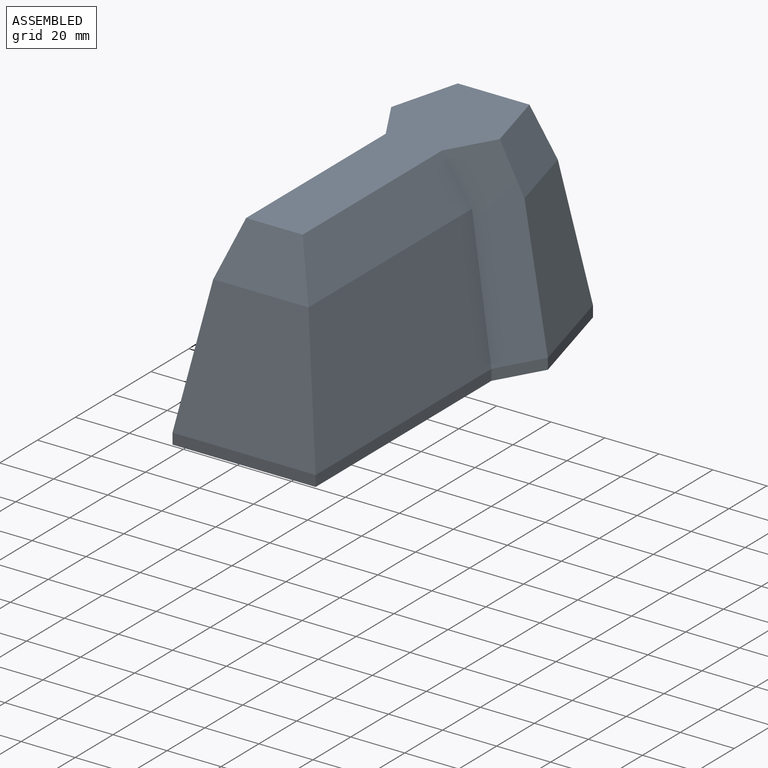
[diagram: assembled view]
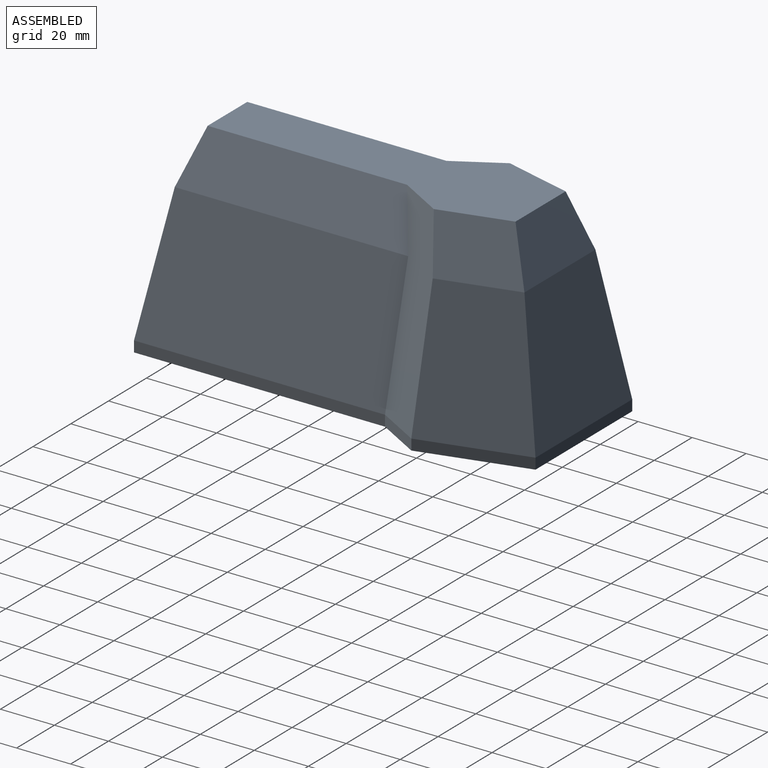
[diagram: assembled view, second angle]
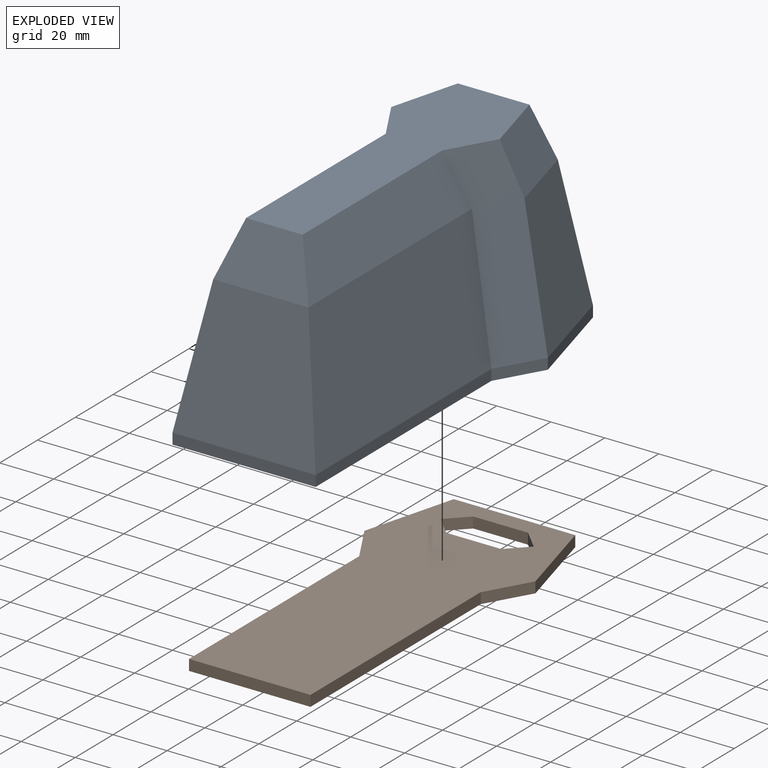
[diagram: exploded view]
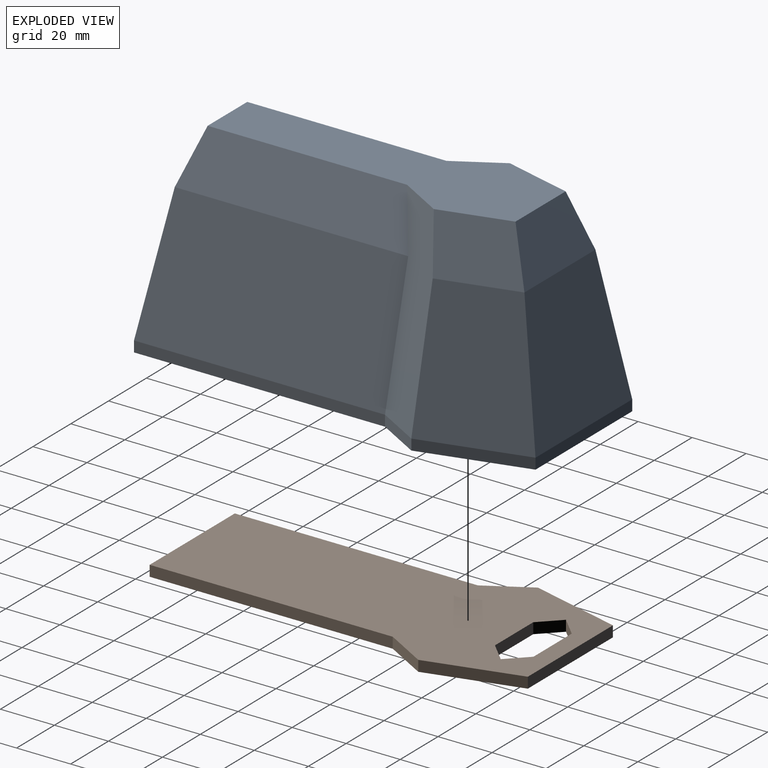
[diagram: exploded view, second angle]
ASSEMBLY  parts=2 mates=2
PART A: 47 faces, bbox 71.9x148x74 mm
  f0: plane 148x71.89mm, normal (0,0,-1), area 1189.3mm2, adj f10,f11,f12,f13,f14,f15,f16,f17
  f1: plane 70x25.48mm, normal (-0.85,-0.49,0.17), area 1299.9mm2, adj f2,f8,f9,f10,f18,f21
  f2: plane 95.31x50.3mm, normal (-0.98,0,0.17), area 4580.9mm2, adj f1,f3,f11,f18
  f3: plane 53x50.3mm, normal (0,-0.98,0.17), area 2254.2mm2, adj f2,f4,f12,f20
  f4: plane 95.31x50.3mm, normal (0.98,0,0.17), area 4580.9mm2, adj f3,f5,f13,f19
  f5: plane 70x25.48mm, normal (0.85,-0.49,0.17), area 1299.9mm2, adj f4,f6,f9,f14,f19,f23
  f6: plane 50.3x38.72mm, normal (0.95,0.25,0.17), area 1779.7mm2, adj f5,f7,f15,f23
  f7: plane 51.14x50.3mm, normal (0,0.98,0.17), area 2264.5mm2, adj f6,f8,f16,f22
  f8: plane 50.3x38.72mm, normal (-0.95,0.25,0.17), area 1779.7mm2, adj f1,f7,f17,f21
  f9: plane 115.92x40.17mm, normal (0,0,1), area 2902.1mm2, adj f1,f5,f18,f19,f20,f21,f22,f23
  f10: plane 16.36x9.44mm, normal (-0.87,-0.5,0), area 75.5mm2, adj f0,f1,f11,f17
  f11: plane 92.93x4mm, normal (-1,0,0), area 371.7mm2, adj f0,f2,f10,f12
  f12: plane 53x4mm, normal (0,-1,0), area 212mm2, adj f0,f3,f11,f13
  f13: plane 92.93x4mm, normal (1,0,0), area 371.7mm2, adj f0,f4,f12,f14
  f14: plane 16.36x9.44mm, normal (0.87,-0.5,0), area 75.5mm2, adj f0,f5,f13,f15
  f15: plane 38.72x10.37mm, normal (0.97,0.26,0), area 160.3mm2, adj f0,f6,f14,f16
  f16: plane 51.14x4mm, normal (0,1,0), area 204.6mm2, adj f0,f7,f15,f17
  f17: plane 38.72x10.37mm, normal (-0.97,0.26,0), area 160.3mm2, adj f0,f8,f10,f16
  f18: plane 86.44x19.7mm, normal (-0.94,0,0.34), area 1679.2mm2, adj f1,f2,f9,f20
  f19: plane 86.44x19.7mm, normal (0.94,0,0.34), area 1679.2mm2, adj f4,f5,f9,f20
  f20: plane 35.26x19.7mm, normal (0,-0.94,0.34), area 588.8mm2, adj f3,f9,f18,f19
  f21: plane 32.63x19.7mm, normal (-0.91,0.24,0.34), area 586.5mm2, adj f1,f8,f9,f22
  f22: plane 37.53x19.7mm, normal (0,0.94,0.34), area 671.3mm2, adj f7,f9,f21,f23
  f23: plane 32.63x19.7mm, normal (0.91,0.24,0.34), area 586.5mm2, adj f5,f6,f9,f22
  f24: plane 67.26x24.36mm, normal (0.85,0.49,-0.17), area 1217.8mm2, adj f25,f31,f32,f33,f41,f44
  f25: plane 93.08x49.79mm, normal (0.98,0,-0.17), area 4424.5mm2, adj f24,f26,f34,f41
  f26: plane 49.79x47mm, normal (0,0.98,-0.17), area 1932.3mm2, adj f25,f27,f35,f43
  f27: plane 93.08x49.79mm, normal (-0.98,0,-0.17), area 4424.5mm2, adj f26,f28,f36,f42
  f28: plane 67.26x24.36mm, normal (-0.85,0.49,-0.17), area 1217.8mm2, adj f27,f29,f32,f37,f42,f46
  f29: plane 49.79x35.29mm, normal (-0.95,-0.25,-0.17), area 1584.9mm2, adj f28,f30,f38,f46
  f30: plane 49.79x46.53mm, normal (0,-0.98,-0.17), area 2012mm2, adj f29,f31,f39,f45
  f31: plane 49.79x35.29mm, normal (0.95,-0.25,-0.17), area 1584.9mm2, adj f24,f30,f40,f44
  f32: plane 111.72x35.36mm, normal (0,0,-1), area 2302mm2, adj f24,f28,f41,f42,f43,f44,f45,f46
  f33: plane 15.98x9.22mm, normal (0.87,0.5,0), area 68.9mm2, adj f0,f24,f34,f40
  f34: plane 90.73x3.74mm, normal (1,0,0), area 339.1mm2, adj f0,f25,f33,f35
  f35: plane 47x3.74mm, normal (0,1,0), area 175.7mm2, adj f0,f26,f34,f36
  f36: plane 90.73x3.74mm, normal (-1,0,0), area 339.1mm2, adj f0,f27,f35,f37
  f37: plane 15.98x9.22mm, normal (-0.87,0.5,0), area 68.9mm2, adj f0,f28,f36,f38
  f38: plane 35.29x9.46mm, normal (-0.97,-0.26,0), area 136.6mm2, adj f0,f29,f37,f39
  f39: plane 46.53x3.74mm, normal (0,-1,0), area 173.9mm2, adj f0,f30,f38,f40
  f40: plane 35.29x9.46mm, normal (0.97,-0.26,0), area 136.6mm2, adj f0,f31,f33,f39
  f41: plane 84.31x17.48mm, normal (0.94,0,-0.34), area 1463.6mm2, adj f24,f25,f32,f43
  f42: plane 84.31x17.48mm, normal (-0.94,0,-0.34), area 1463.6mm2, adj f27,f28,f32,f43
  f43: plane 29.44x17.48mm, normal (0,0.94,-0.34), area 429.3mm2, adj f26,f32,f41,f42
  f44: plane 28.85x17.48mm, normal (0.91,-0.24,-0.34), area 459.8mm2, adj f24,f31,f32,f45
  f45: plane 33.06x17.48mm, normal (0,-0.94,-0.34), area 524.1mm2, adj f30,f32,f44,f46
  f46: plane 28.85x17.48mm, normal (-0.91,-0.24,-0.34), area 459.8mm2, adj f28,f29,f32,f45
PART B: 16 faces, bbox 63.3x140x4 mm
  f0: plane 140x63.3mm, normal (0,0,1), area 6367.4mm2, adj f2,f3,f4,f5,f6,f7,f8,f9
  f1: plane 140x63.3mm, normal (0,0,-1), area 6367.4mm2, adj f2,f3,f4,f5,f6,f7,f8,f9
  f2: plane 90x4mm, normal (1,0,0), area 360mm2, adj f0,f1,f3,f9
  f3: plane 15.85x9.15mm, normal (0.87,-0.5,0), area 73.2mm2, adj f0,f1,f2,f4
  f4: plane 34.15x9.15mm, normal (0.97,0.26,0), area 141.4mm2, adj f0,f1,f3,f5
  f5: plane 45x4mm, normal (0,1,0), area 180mm2, adj f0,f1,f4,f6
  f6: plane 34.15x9.15mm, normal (-0.97,0.26,0), area 141.4mm2, adj f0,f1,f5,f7
  f7: plane 15.85x9.15mm, normal (-0.87,-0.5,0), area 73.2mm2, adj f0,f1,f6,f8
  f8: plane 90x4mm, normal (-1,0,0), area 360mm2, adj f0,f1,f7,f9
  f9: plane 45x4mm, normal (0,-1,0), area 180mm2, adj f0,f1,f2,f8
  f10: plane 7.13x7.13mm, normal (-0.71,0.71,0), area 40.3mm2, adj f0,f1,f11,f15
  f11: plane 7.13x7.13mm, normal (-0.71,-0.71,0), area 40.3mm2, adj f0,f1,f10,f12
  f12: plane 20.25x4mm, normal (0,-1,0), area 81mm2, adj f0,f1,f11,f13
  f13: plane 7.13x7.13mm, normal (0.71,-0.71,0), area 40.3mm2, adj f0,f1,f12,f14
  f14: plane 7.13x7.13mm, normal (0.71,0.71,0), area 40.3mm2, adj f0,f1,f13,f15
  f15: plane 20.25x4mm, normal (0,1,0), area 81mm2, adj f0,f1,f10,f14
PLACE A t=(95.17,44.74,-24.86)mm
PLACE B t=(18.46,-9.07,-28.86)mm
MATE planar B.f1 <-> A.f0  axis (0,0,-1) through (18.49,15.51,-28.86)mm
MATE planar A.f35 <-> B.f9  axis (0,1,0) through (18.46,-54.07,-26.99)mm
